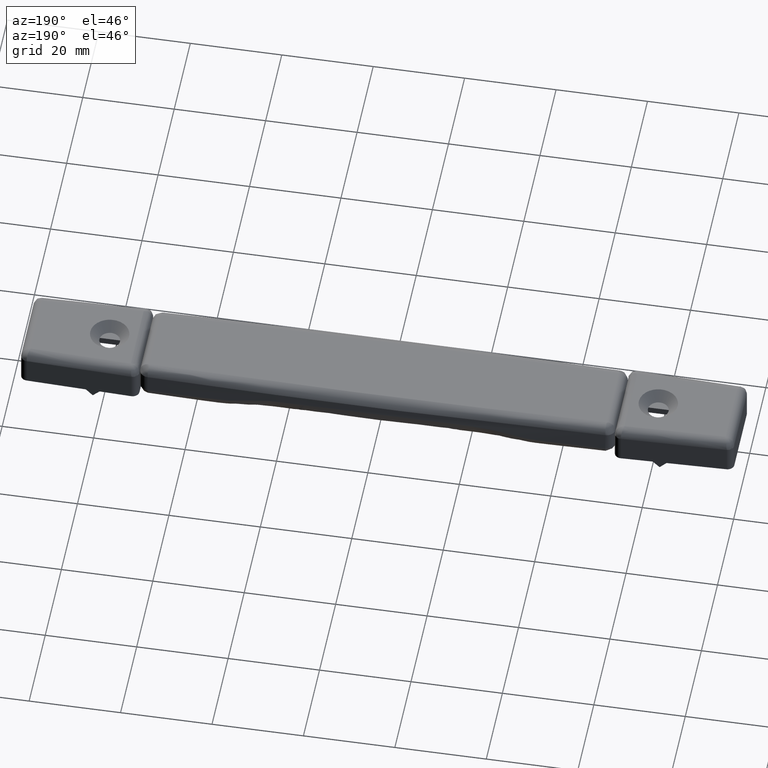
[diagram: clean part render]
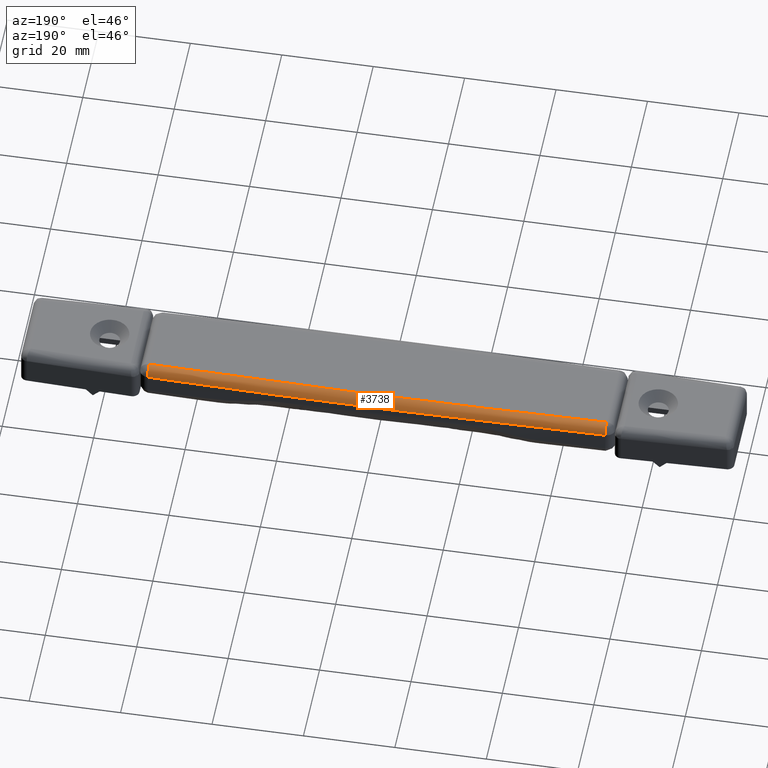
[diagram: same view with one face highlighted and labeled with its STEP entity id]
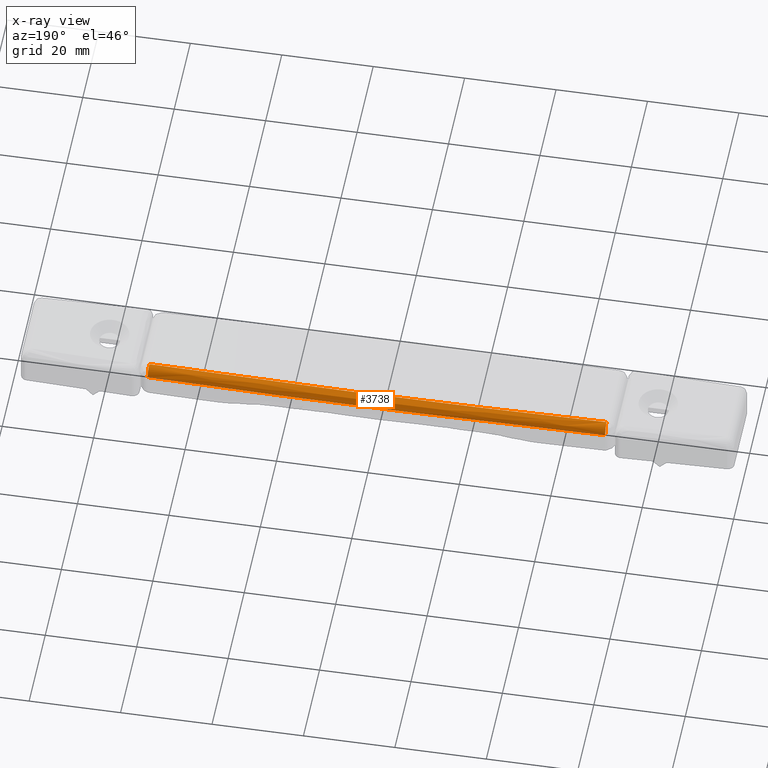
[diagram: x-ray of the same camera — body ghosted, the highlighted face saturated]
A machine part, auxiliary view. The second image highlights one B-rep face of the part: STEP entity #3738.
The next image is the same camera in x-ray: the body ghosted, the highlighted face saturated — about 0% of this face is hidden behind the body in this view.
In plain terms, the highlighted face is a freeform B-spline surface patch.
Its self-contained STEP definition (entity closure, byte-faithful):
#3659=CARTESIAN_POINT('',(-54.989886018730751,7.200852689861755,7.995158726982441));
#3660=CARTESIAN_POINT('',(0.000201391925657,8.517192095992684,7.995158726982443));
#3661=CARTESIAN_POINT('',(54.990288571910867,7.200843053605856,7.995158726982441));
#3662=CARTESIAN_POINT('',(-55.044787066142923,9.494344309175800,8.155074354000067));
#3663=CARTESIAN_POINT('',(0.000201592992241,10.811997928108010,8.155074354000069));
#3664=CARTESIAN_POINT('',(55.045190021225928,9.494334663299217,8.155074354000069));
#3665=CARTESIAN_POINT('',(-55.040960140858601,9.334474480074235,5.860925724765162));
#3666=CARTESIAN_POINT('',(0.000201578976734,10.652036490659510,5.860925724765162));
#3667=CARTESIAN_POINT('',(55.041363067926625,9.334464834868268,5.860925724765163));
#3675=(BOUNDED_SURFACE()B_SPLINE_SURFACE(2,2,((#3659,#3662,#3665),(#3660,#3663,#3666),(#3661,#3664,#3667)),.UNSPECIFIED.,.F.,.F.,.U.)B_SPLINE_SURFACE_WITH_KNOTS((3,3),(3,3),(24.998972623062130,135.094647677230800),(0.417733704456687,4.062481666198373),.UNSPECIFIED.)GEOMETRIC_REPRESENTATION_ITEM()RATIONAL_B_SPLINE_SURFACE(((0.894025280734182,0.586681696082755,0.894025280650730),(0.893769244314882,0.586513678596034,0.893769244231454),(0.894025282609032,0.586681697313078,0.894025282525580)))REPRESENTATION_ITEM('')SURFACE());
#3676=CARTESIAN_POINT('',(-50.043115752828498,9.453519588441759,6.0));
#3677=VERTEX_POINT('',#3676);
#3678=CARTESIAN_POINT('',(-49.999600000000001,7.453993049669090,8.0));
#3679=VERTEX_POINT('',#3678);
#3680=CARTESIAN_POINT('',(-50.043115752828527,9.453519588441649,6.0));
#3681=CARTESIAN_POINT('',(-50.043115752828541,9.453519588441649,8.0));
#3682=CARTESIAN_POINT('',(-49.999600000000001,7.453993049669090,8.0));
#3690=(BOUNDED_CURVE()B_SPLINE_CURVE(2,(#3680,#3681,#3682),.UNSPECIFIED.,.F.,.U.)CURVE()GEOMETRIC_REPRESENTATION_ITEM()QUASI_UNIFORM_CURVE()RATIONAL_B_SPLINE_CURVE((1.0,0.707106781186548,1.0))REPRESENTATION_ITEM(''));
#3691=EDGE_CURVE('',#3677,#3679,#3690,.T.);
#3692=ORIENTED_EDGE('',*,*,#3691,.T.);
#3693=CARTESIAN_POINT('',(50.0,7.453984344422790,8.0));
#3694=VERTEX_POINT('',#3693);
#3695=CARTESIAN_POINT('',(50.0,7.453984344422790,8.0));
#3696=CARTESIAN_POINT('',(0.000200094725965,8.542140118592112,8.000000000000002));
#3697=CARTESIAN_POINT('',(-49.999599999998857,7.453993049669094,8.0));
#3705=(BOUNDED_CURVE()B_SPLINE_CURVE(2,(#3695,#3696,#3697),.UNSPECIFIED.,.F.,.U.)CURVE()GEOMETRIC_REPRESENTATION_ITEM()QUASI_UNIFORM_CURVE()RATIONAL_B_SPLINE_CURVE((1.0,0.999763267492191,1.0))REPRESENTATION_ITEM(''));
#3706=EDGE_CURVE('',#3694,#3679,#3705,.T.);
#3707=ORIENTED_EDGE('',*,*,#3706,.F.);
#3708=CARTESIAN_POINT('',(50.043516100957397,9.453510875618848,6.0));
#3709=VERTEX_POINT('',#3708);
#3710=CARTESIAN_POINT('',(50.043516100957397,9.453510875618848,6.0));
#3711=CARTESIAN_POINT('',(50.043516100957355,9.453510875618980,8.0));
#3712=CARTESIAN_POINT('',(50.0,7.453984344422790,8.0));
#3720=(BOUNDED_CURVE()B_SPLINE_CURVE(2,(#3710,#3711,#3712),.UNSPECIFIED.,.F.,.U.)CURVE()GEOMETRIC_REPRESENTATION_ITEM()QUASI_UNIFORM_CURVE()RATIONAL_B_SPLINE_CURVE((1.0,0.707106781186548,1.0))REPRESENTATION_ITEM(''));
#3721=EDGE_CURVE('',#3709,#3694,#3720,.T.);
#3722=ORIENTED_EDGE('',*,*,#3721,.F.);
#3723=CARTESIAN_POINT('',(-50.043115752828498,9.453519588441759,6.0));
#3724=CARTESIAN_POINT('',(0.000200268875375,10.542613695718298,6.000000000000001));
#3725=CARTESIAN_POINT('',(50.043516100957227,9.453510875618854,6.0));
#3733=(BOUNDED_CURVE()B_SPLINE_CURVE(2,(#3723,#3724,#3725),.UNSPECIFIED.,.F.,.U.)CURVE()GEOMETRIC_REPRESENTATION_ITEM()QUASI_UNIFORM_CURVE()RATIONAL_B_SPLINE_CURVE((1.0,0.999763267492191,1.0))REPRESENTATION_ITEM(''));
#3734=EDGE_CURVE('',#3677,#3709,#3733,.T.);
#3735=ORIENTED_EDGE('',*,*,#3734,.F.);
#3736=EDGE_LOOP('',(#3692,#3707,#3722,#3735));
#3737=FACE_OUTER_BOUND('',#3736,.T.);
#3738=ADVANCED_FACE('',(#3737),#3675,.T.);